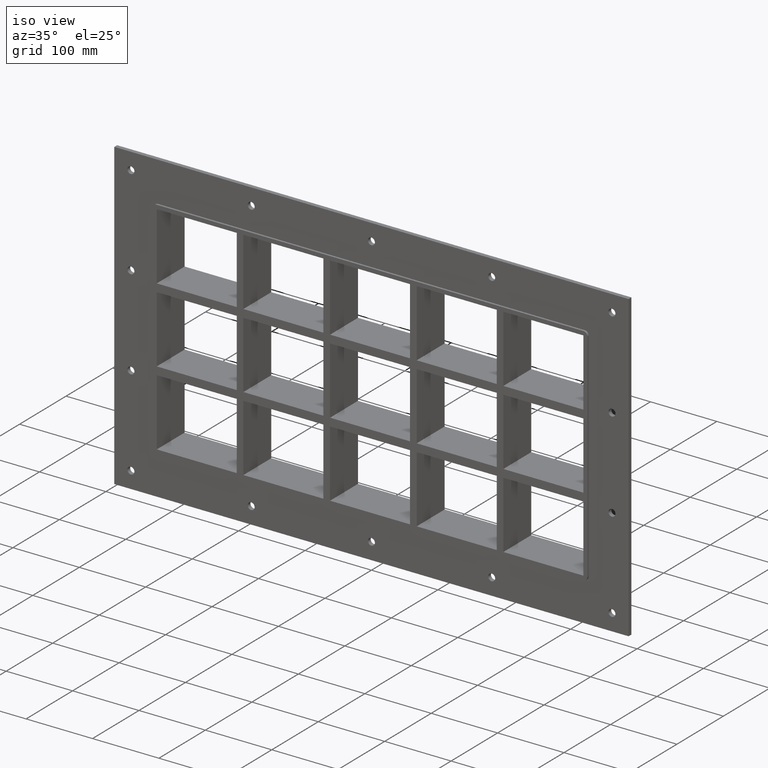
[diagram: clean part render]
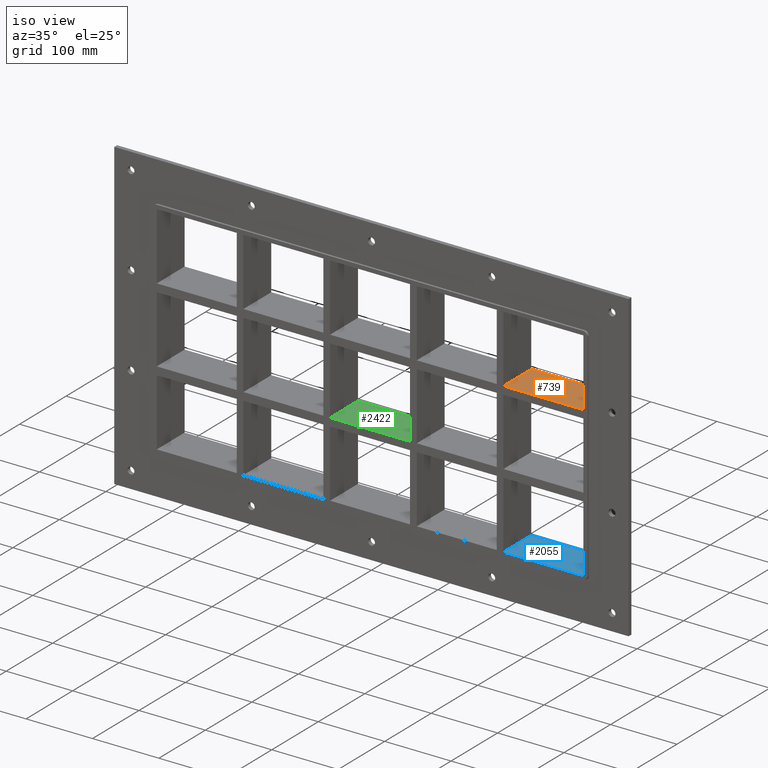
[diagram: same view with three faces highlighted in distinct colors, each labeled with its STEP entity id]
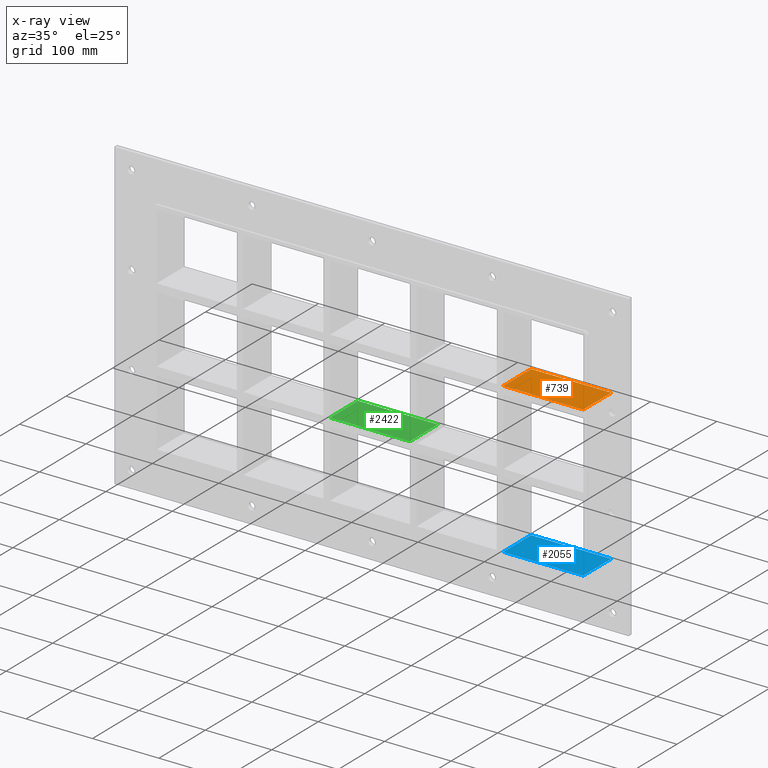
[diagram: x-ray of the same camera — body ghosted, the three highlighted faces saturated]
A machine part, iso view with three faces highlighted in distinct colors.
The next image is the same camera in x-ray (body ghosted, the three faces saturated) — at least one of them is partly hidden behind the body in this view.
Their STEP definitions:

[orange] entity #739 — the highlighted planar face has unit normal (0, 0, 1).
#700=CARTESIAN_POINT('',(-321.25000000000045,-3.0,62.499999999999893));
#701=DIRECTION('',(0.0,0.0,1.0));
#702=DIRECTION('',(1.0,0.0,0.0));
#703=AXIS2_PLACEMENT_3D('',#700,#701,#702);
#704=PLANE('',#703);
#705=CARTESIAN_POINT('',(200.74999999999278,-3.0,62.499999999999893));
#706=VERTEX_POINT('',#705);
#707=CARTESIAN_POINT('',(200.74999999999278,57.0,62.499999999999893));
#708=VERTEX_POINT('',#707);
#709=CARTESIAN_POINT('',(200.74999999999278,-3.0,62.499999999999893));
#710=DIRECTION('',(0.0,1.0,0.0));
#711=VECTOR('',#710,60.0);
#712=LINE('',#709,#711);
#713=EDGE_CURVE('',#706,#708,#712,.T.);
#714=ORIENTED_EDGE('',*,*,#713,.F.);
#715=CARTESIAN_POINT('',(321.25000000000011,-3.0,62.499999999999893));
#716=VERTEX_POINT('',#715);
#717=CARTESIAN_POINT('',(200.74999999999272,-3.0,62.499999999999893));
#718=DIRECTION('',(1.0,0.0,0.0));
#719=VECTOR('',#718,120.50000000000739);
#720=LINE('',#717,#719);
#721=EDGE_CURVE('',#706,#716,#720,.T.);
#722=ORIENTED_EDGE('',*,*,#721,.T.);
#723=CARTESIAN_POINT('',(321.25000000000011,57.0,62.499999999999893));
#724=VERTEX_POINT('',#723);
#725=CARTESIAN_POINT('',(321.25,57.000000000000007,62.499999999999893));
#726=DIRECTION('',(0.0,-1.0,0.0));
#727=VECTOR('',#726,60.000000000000007);
#728=LINE('',#725,#727);
#729=EDGE_CURVE('',#724,#716,#728,.T.);
#730=ORIENTED_EDGE('',*,*,#729,.F.);
#731=CARTESIAN_POINT('',(200.74999999999272,57.0,62.499999999999893));
#732=DIRECTION('',(1.0,0.0,0.0));
#733=VECTOR('',#732,120.50000000000739);
#734=LINE('',#731,#733);
#735=EDGE_CURVE('',#708,#724,#734,.T.);
#736=ORIENTED_EDGE('',*,*,#735,.F.);
#737=EDGE_LOOP('',(#714,#722,#730,#736));
#738=FACE_OUTER_BOUND('',#737,.T.);
#739=ADVANCED_FACE('',(#738),#704,.T.);

[blue] entity #2055 — the highlighted planar face has unit normal (0, 0, -1).
#1609=CARTESIAN_POINT('',(200.74999999999278,57.0,-163.49999999998647));
#1610=VERTEX_POINT('',#1609);
#1611=CARTESIAN_POINT('',(321.25,57.0,-163.50000000000006));
#1612=VERTEX_POINT('',#1611);
#1613=CARTESIAN_POINT('',(200.74999999999278,57.0,-163.50000000000006));
#1614=DIRECTION('',(1.0,0.0,0.0));
#1615=VECTOR('',#1614,120.50000000000722);
#1616=LINE('',#1613,#1615);
#1617=EDGE_CURVE('',#1610,#1612,#1616,.T.);
#1736=CARTESIAN_POINT('',(200.74999999999278,-3.0,-163.49999999998653));
#1737=VERTEX_POINT('',#1736);
#1744=CARTESIAN_POINT('',(200.74999999999278,57.000000000000007,-163.50000000000006));
#1745=DIRECTION('',(0.0,-1.0,0.0));
#1746=VECTOR('',#1745,60.000000000000007);
#1747=LINE('',#1744,#1746);
#1748=EDGE_CURVE('',#1610,#1737,#1747,.T.);
#2032=CARTESIAN_POINT('',(321.25,0.0,-163.50000000000006));
#2033=DIRECTION('',(0.0,0.0,-1.0));
#2034=DIRECTION('',(-1.0,0.0,0.0));
#2035=AXIS2_PLACEMENT_3D('',#2032,#2033,#2034);
#2036=PLANE('',#2035);
#2037=ORIENTED_EDGE('',*,*,#1748,.T.);
#2038=CARTESIAN_POINT('',(321.25,-3.0,-163.50000000000006));
#2039=VERTEX_POINT('',#2038);
#2040=CARTESIAN_POINT('',(321.25,-3.0,-163.50000000000006));
#2041=DIRECTION('',(-1.0,0.0,0.0));
#2042=VECTOR('',#2041,120.50000000000722);
#2043=LINE('',#2040,#2042);
#2044=EDGE_CURVE('',#2039,#1737,#2043,.T.);
#2045=ORIENTED_EDGE('',*,*,#2044,.F.);
#2046=CARTESIAN_POINT('',(321.25,56.999999999999993,-163.50000000000006));
#2047=DIRECTION('',(0.0,-1.0,0.0));
#2048=VECTOR('',#2047,59.999999999999993);
#2049=LINE('',#2046,#2048);
#2050=EDGE_CURVE('',#1612,#2039,#2049,.T.);
#2051=ORIENTED_EDGE('',*,*,#2050,.F.);
#2052=ORIENTED_EDGE('',*,*,#1617,.F.);
#2053=EDGE_LOOP('',(#2037,#2045,#2051,#2052));
#2054=FACE_OUTER_BOUND('',#2053,.T.);
#2055=ADVANCED_FACE('',(#2054),#2036,.F.);

[green] entity #2422 — the highlighted planar face has unit normal (0, 0, 1).
#1413=CARTESIAN_POINT('',(-60.250000000007269,57.0,-50.500000000000114));
#1414=VERTEX_POINT('',#1413);
#1421=CARTESIAN_POINT('',(60.249999999997925,57.0,-50.500000000000114));
#1422=VERTEX_POINT('',#1421);
#1423=CARTESIAN_POINT('',(-60.250000000007276,57.0,-50.500000000000114));
#1424=DIRECTION('',(1.0,0.0,0.0));
#1425=VECTOR('',#1424,120.50000000000517);
#1426=LINE('',#1423,#1425);
#1427=EDGE_CURVE('',#1414,#1422,#1426,.T.);
#1761=CARTESIAN_POINT('',(60.249999999997925,-3.0,-50.500000000000114));
#1762=VERTEX_POINT('',#1761);
#1763=CARTESIAN_POINT('',(60.249999999997925,-3.0,-50.500000000000114));
#1764=DIRECTION('',(0.0,1.0,0.0));
#1765=VECTOR('',#1764,60.0);
#1766=LINE('',#1763,#1765);
#1767=EDGE_CURVE('',#1762,#1422,#1766,.T.);
#1925=CARTESIAN_POINT('',(-60.250000000007269,-3.0,-50.500000000000114));
#1926=VERTEX_POINT('',#1925);
#1933=CARTESIAN_POINT('',(-60.25000000000729,57.0,-50.500000000000114));
#1934=DIRECTION('',(0.0,-1.0,0.0));
#1935=VECTOR('',#1934,60.0);
#1936=LINE('',#1933,#1935);
#1937=EDGE_CURVE('',#1414,#1926,#1936,.T.);
#2165=CARTESIAN_POINT('',(-60.250000000007276,-3.0,-50.500000000000114));
#2166=DIRECTION('',(1.0,0.0,0.0));
#2167=VECTOR('',#2166,120.50000000000517);
#2168=LINE('',#2165,#2167);
#2169=EDGE_CURVE('',#1926,#1762,#2168,.T.);
#2411=CARTESIAN_POINT('',(-321.25000000000045,-3.0,-50.500000000000114));
#2412=DIRECTION('',(0.0,0.0,1.0));
#2413=DIRECTION('',(1.0,0.0,0.0));
#2414=AXIS2_PLACEMENT_3D('',#2411,#2412,#2413);
#2415=PLANE('',#2414);
#2416=ORIENTED_EDGE('',*,*,#1767,.T.);
#2417=ORIENTED_EDGE('',*,*,#1427,.F.);
#2418=ORIENTED_EDGE('',*,*,#1937,.T.);
#2419=ORIENTED_EDGE('',*,*,#2169,.T.);
#2420=EDGE_LOOP('',(#2416,#2417,#2418,#2419));
#2421=FACE_OUTER_BOUND('',#2420,.T.);
#2422=ADVANCED_FACE('',(#2421),#2415,.T.);